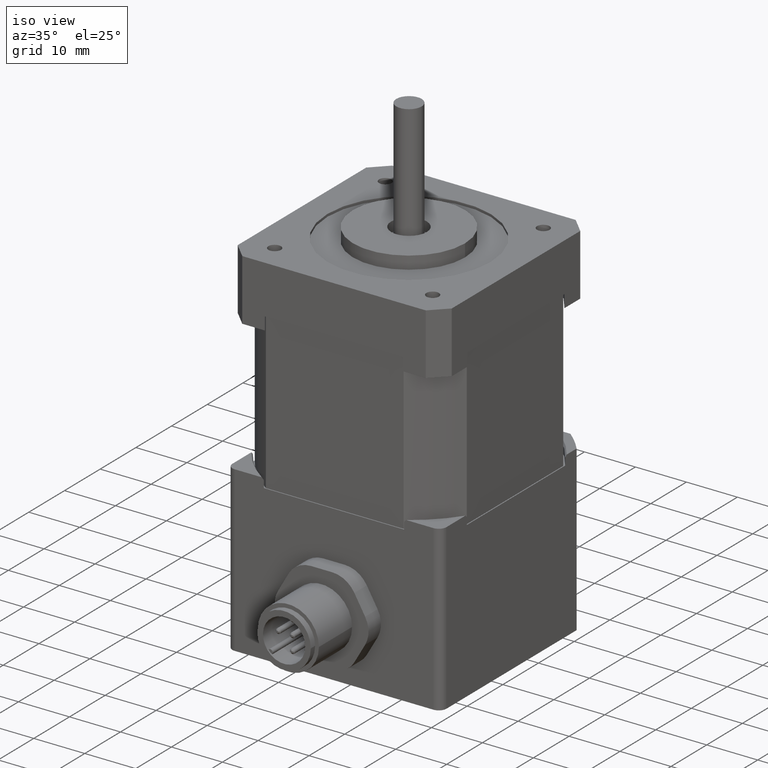
[diagram: clean part render]
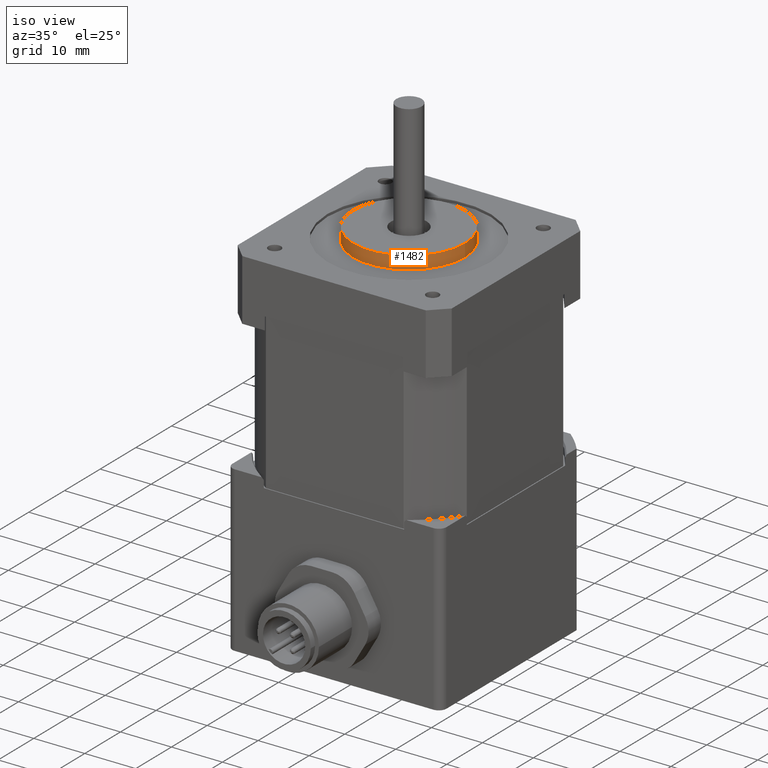
[diagram: same view with one face highlighted and labeled with its STEP entity id]
A machine part, iso view. The second image highlights one B-rep face of the part: STEP entity #1482.
In plain terms, the highlighted cylindrical surface (bore or boss wall) has radius 11 mm, axis along (0, -0, 1).
Its self-contained STEP definition (entity closure, byte-faithful):
#1451=CARTESIAN_POINT('',(-11.0,1.347067E-015,0.500000000000000));
#1452=VERTEX_POINT('',#1451);
#1453=CARTESIAN_POINT('',(0.0,0.0,0.500000000000000));
#1454=DIRECTION('',(0.0,0.0,-1.0));
#1455=DIRECTION('',(1.0,0.0,0.0));
#1456=AXIS2_PLACEMENT_3D('',#1453,#1454,#1455);
#1457=CIRCLE('',#1456,11.0);
#1458=EDGE_CURVE('',#1452,#1452,#1457,.T.);
#1463=CARTESIAN_POINT('',(0.0,0.0,0.0));
#1464=DIRECTION('',(0.0,0.0,-1.0));
#1465=DIRECTION('',(1.0,0.0,0.0));
#1466=AXIS2_PLACEMENT_3D('',#1463,#1464,#1465);
#1467=CYLINDRICAL_SURFACE('',#1466,11.0);
#1468=ORIENTED_EDGE('',*,*,#1458,.T.);
#1469=EDGE_LOOP('',(#1468));
#1470=FACE_OUTER_BOUND('',#1469,.T.);
#1471=CARTESIAN_POINT('',(-11.0,1.347067E-015,-2.0));
#1472=VERTEX_POINT('',#1471);
#1473=CARTESIAN_POINT('',(0.0,0.0,-2.0));
#1474=DIRECTION('',(0.0,0.0,1.0));
#1475=DIRECTION('',(1.0,0.0,0.0));
#1476=AXIS2_PLACEMENT_3D('',#1473,#1474,#1475);
#1477=CIRCLE('',#1476,11.0);
#1478=EDGE_CURVE('',#1472,#1472,#1477,.T.);
#1479=ORIENTED_EDGE('',*,*,#1478,.T.);
#1480=EDGE_LOOP('',(#1479));
#1481=FACE_BOUND('',#1480,.T.);
#1482=ADVANCED_FACE('',(#1470,#1481),#1467,.T.);